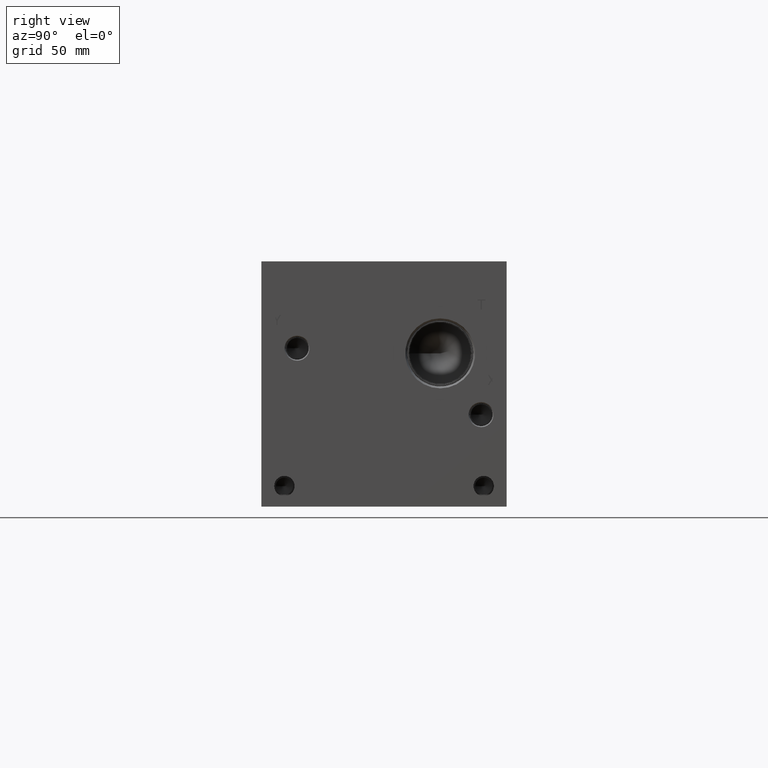
[diagram: clean part render]
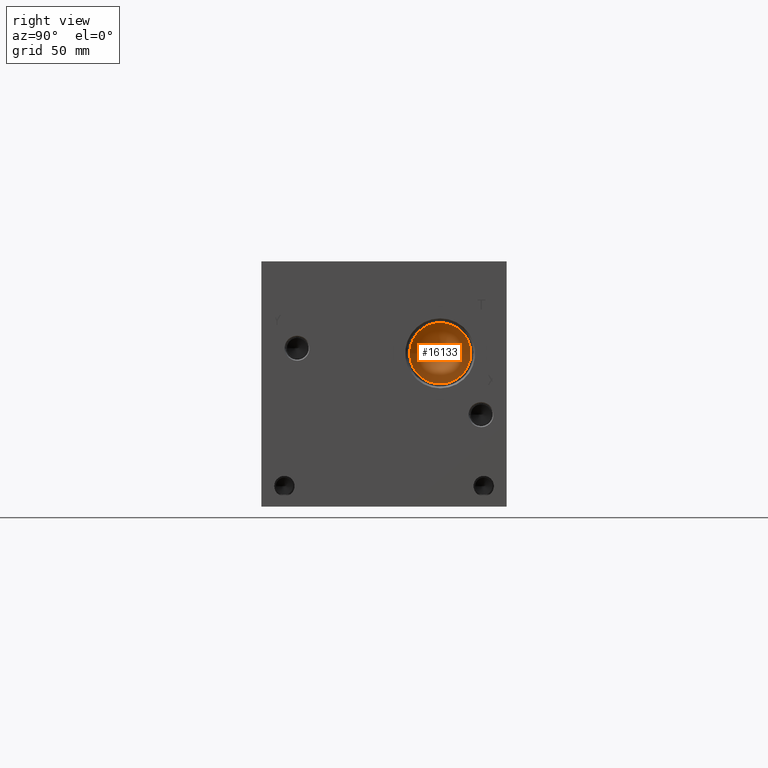
[diagram: same view with one face highlighted and labeled with its STEP entity id]
A machine part, right view. The second image highlights one B-rep face of the part: STEP entity #16133.
In plain terms, the highlighted conical surface has half-angle 60 deg.
Its self-contained STEP definition (entity closure, byte-faithful):
#156=CONICAL_SURFACE('',#16843,9.525,1.0471975511966);
#292=CIRCLE('',#16844,19.05);
#293=CIRCLE('',#16845,19.05);
#2069=FACE_OUTER_BOUND('',#2988,.T.);
#2988=EDGE_LOOP('',(#13032,#13033,#13034,#13035));
#4526=LINE('',#26988,#5912);
#5912=VECTOR('',#19564,9.525);
#7197=VERTEX_POINT('',#26984);
#7198=VERTEX_POINT('',#26985);
#7199=VERTEX_POINT('',#26987);
#9290=EDGE_CURVE('',#7197,#7198,#292,.T.);
#9291=EDGE_CURVE('',#7198,#7199,#4526,.T.);
#9292=EDGE_CURVE('',#7198,#7197,#293,.T.);
#13032=ORIENTED_EDGE('',*,*,#9290,.T.);
#13033=ORIENTED_EDGE('',*,*,#9291,.T.);
#13034=ORIENTED_EDGE('',*,*,#9291,.F.);
#13035=ORIENTED_EDGE('',*,*,#9292,.T.);
#16133=ADVANCED_FACE('',(#2069),#156,.F.);
#16843=AXIS2_PLACEMENT_3D('',#26983,#19560,#19561);
#16844=AXIS2_PLACEMENT_3D('',#26986,#19562,#19563);
#16845=AXIS2_PLACEMENT_3D('',#26989,#19565,#19566);
#19560=DIRECTION('center_axis',(1.,0.,0.));
#19561=DIRECTION('ref_axis',(0.,1.,0.));
#19562=DIRECTION('center_axis',(1.,0.,0.));
#19563=DIRECTION('ref_axis',(0.,1.,0.));
#19564=DIRECTION('',(-0.5,0.866025403784439,1.06057523872491E-16));
#19565=DIRECTION('center_axis',(1.,0.,0.));
#19566=DIRECTION('ref_axis',(0.,1.,0.));
#26983=CARTESIAN_POINT('Origin',(359.503618685969,111.125,95.25));
#26984=CARTESIAN_POINT('',(365.00288,130.175,95.25));
#26985=CARTESIAN_POINT('',(365.00288,92.075,95.25));
#26986=CARTESIAN_POINT('Origin',(365.00288,111.125,95.25));
#26987=CARTESIAN_POINT('',(354.004357371938,111.125,95.25));
#26988=CARTESIAN_POINT('',(359.503618685969,101.6,95.25));
#26989=CARTESIAN_POINT('Origin',(365.00288,111.125,95.25));